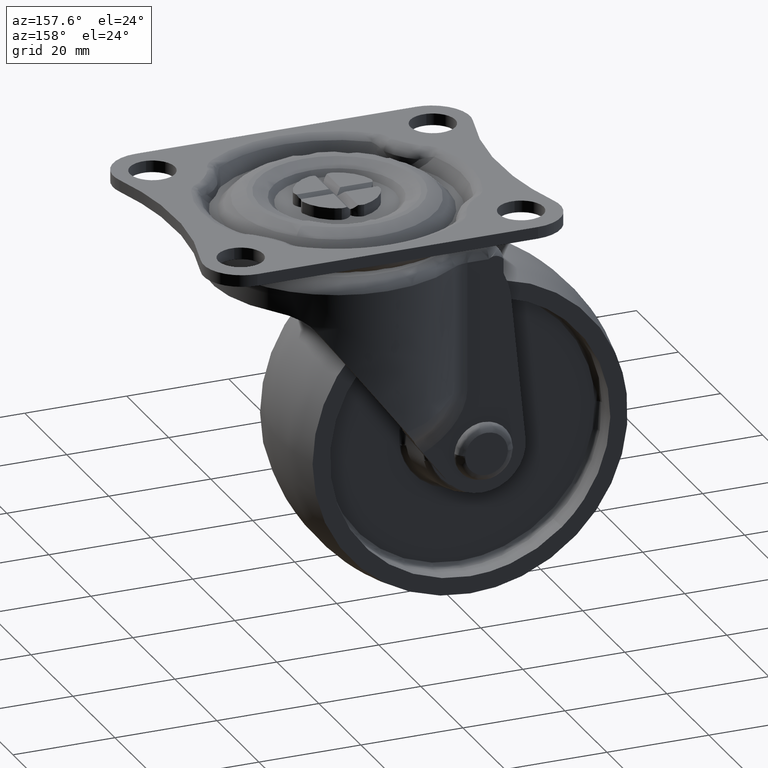
[diagram: clean part render]
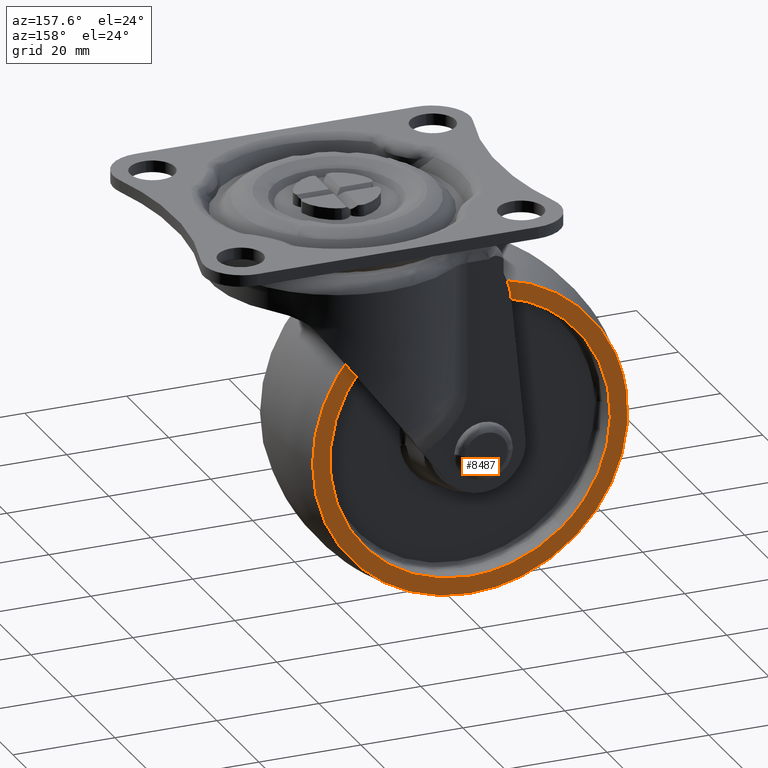
[diagram: same view with one face highlighted and labeled with its STEP entity id]
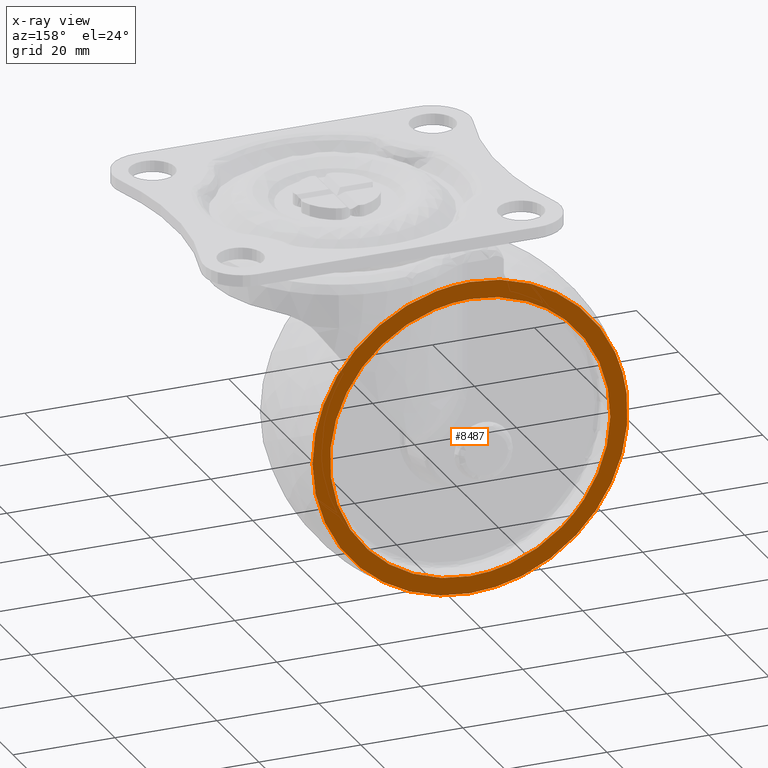
[diagram: x-ray of the same camera — body ghosted, the highlighted face saturated]
A machine part, auxiliary view. The second image highlights one B-rep face of the part: STEP entity #8487.
The next image is the same camera in x-ray: the body ghosted, the highlighted face saturated — about 0% of this face is hidden behind the body in this view.
In plain terms, the highlighted face is a freeform B-spline surface patch.
Its self-contained STEP definition (entity closure, byte-faithful):
#6432=CARTESIAN_POINT('',(-17.994337743347671,12.499999999999959,-20.795523777445940));
#6433=VERTEX_POINT('',#6432);
#6434=CARTESIAN_POINT('',(0.0,12.500000000000000,-27.500000000000000));
#6435=VERTEX_POINT('',#6434);
#6436=CARTESIAN_POINT('',(-17.994337743347671,12.499999999999968,-20.795523777445940));
#6437=CARTESIAN_POINT('',(-10.246172921167416,12.499999999999998,-27.500000000000000));
#6438=CARTESIAN_POINT('',(0.0,12.500000000000000,-27.500000000000000));
#6446=(BOUNDED_CURVE()B_SPLINE_CURVE(2,(#6436,#6437,#6438),.UNSPECIFIED.,.F.,.U.)B_SPLINE_CURVE_WITH_KNOTS((3,3),(0.885882140467313,1.0),.UNSPECIFIED.)CURVE()GEOMETRIC_REPRESENTATION_ITEM()RATIONAL_B_SPLINE_CURVE((0.854663301068287,0.866302611189479,1.0))REPRESENTATION_ITEM(''));
#6447=EDGE_CURVE('',#6433,#6435,#6446,.T.);
#6518=CARTESIAN_POINT('',(-18.578729160376721,12.500000000000000,20.275128181724600));
#6519=VERTEX_POINT('',#6518);
#6525=CARTESIAN_POINT('',(0.0,12.500000000000000,27.500000000000000));
#6526=VERTEX_POINT('',#6525);
#6527=CARTESIAN_POINT('',(0.0,12.500000000000000,27.500000000000000));
#6528=CARTESIAN_POINT('',(-10.694163916566959,12.500000000000000,27.499999999999996));
#6529=CARTESIAN_POINT('',(-18.578729160376717,12.499999999999996,20.275128181724607));
#6537=(BOUNDED_CURVE()B_SPLINE_CURVE(2,(#6527,#6528,#6529),.UNSPECIFIED.,.F.,.U.)B_SPLINE_CURVE_WITH_KNOTS((3,3),(0.500000000000000,0.618415197550459),.UNSPECIFIED.)CURVE()GEOMETRIC_REPRESENTATION_ITEM()RATIONAL_B_SPLINE_CURVE((1.0,0.861267966532061,0.853959782261585))REPRESENTATION_ITEM(''));
#6538=EDGE_CURVE('',#6526,#6519,#6537,.T.);
#6540=CARTESIAN_POINT('',(0.0,12.500000000000000,-27.500000000000000));
#6541=CARTESIAN_POINT('',(27.499999999999993,12.499999999999998,-27.499999999999993));
#6542=CARTESIAN_POINT('',(27.500000000000000,12.500000000000000,1.377682E-015));
#6543=CARTESIAN_POINT('',(27.499999999999993,12.499999999999998,27.499999999999993));
#6544=CARTESIAN_POINT('',(0.0,12.500000000000000,27.500000000000000));
#6552=(BOUNDED_CURVE()B_SPLINE_CURVE(2,(#6540,#6541,#6542,#6543,#6544),.UNSPECIFIED.,.F.,.U.)B_SPLINE_CURVE_WITH_KNOTS((3,2,3),(0.0,0.250000000000000,0.500000000000000),.UNSPECIFIED.)CURVE()GEOMETRIC_REPRESENTATION_ITEM()RATIONAL_B_SPLINE_CURVE((1.0,0.707106781186547,1.0,0.707106781186547,1.0))REPRESENTATION_ITEM(''));
#6553=EDGE_CURVE('',#6435,#6526,#6552,.T.);
#6576=CARTESIAN_POINT('',(-18.578729160376717,12.499999999999996,20.275128181724607));
#6577=CARTESIAN_POINT('',(-27.499999999999996,12.499999999999996,12.100290853439613));
#6578=CARTESIAN_POINT('',(-27.500000000000000,12.500000000000000,1.377682E-015));
#6579=CARTESIAN_POINT('',(-27.499999999999993,12.499999999999996,-12.570287474145903));
#6580=CARTESIAN_POINT('',(-17.994337743347671,12.499999999999968,-20.795523777445940));
#6588=(BOUNDED_CURVE()B_SPLINE_CURVE(2,(#6576,#6577,#6578,#6579,#6580),.UNSPECIFIED.,.F.,.U.)B_SPLINE_CURVE_WITH_KNOTS((3,2,3),(0.618415197550459,0.750000000000000,0.885882140467313),.UNSPECIFIED.)CURVE()GEOMETRIC_REPRESENTATION_ITEM()RATIONAL_B_SPLINE_CURVE((0.853959782261585,0.845838814654487,1.0,0.840804169997068,0.854663301068287))REPRESENTATION_ITEM(''));
#6589=EDGE_CURVE('',#6519,#6433,#6588,.T.);
#8304=CARTESIAN_POINT('',(-30.705541457678009,12.500003080849940,3.569238104226155));
#8305=VERTEX_POINT('',#8304);
#8321=CARTESIAN_POINT('',(0.0,12.500000000000000,-30.912291827592700));
#8322=VERTEX_POINT('',#8321);
#8323=CARTESIAN_POINT('',(-30.705541457678013,12.500003080849941,3.569238104226155));
#8324=CARTESIAN_POINT('',(-30.912291057809131,12.500003001391528,1.790607035466678));
#8325=CARTESIAN_POINT('',(-30.912291080694381,12.500002912161779,-0.000000086820092));
#8326=CARTESIAN_POINT('',(-30.912291475775735,12.500001371736809,-30.912291868488200));
#8327=CARTESIAN_POINT('',(0.0,12.500000000000000,-30.912291827592700));
#8335=(BOUNDED_CURVE()B_SPLINE_CURVE(2,(#8323,#8324,#8325,#8326,#8327),.UNSPECIFIED.,.F.,.U.)B_SPLINE_CURVE_WITH_KNOTS((3,2,3),(0.730000141891360,0.750000000000000,1.0),.UNSPECIFIED.)CURVE()GEOMETRIC_REPRESENTATION_ITEM()RATIONAL_B_SPLINE_CURVE((0.956886397467445,0.976568708730993,1.0,0.707106781186548,1.0))REPRESENTATION_ITEM(''));
#8336=EDGE_CURVE('',#8305,#8322,#8335,.T.);
#8338=CARTESIAN_POINT('',(0.0,12.499985035687580,30.912295691356629));
#8339=VERTEX_POINT('',#8338);
#8340=CARTESIAN_POINT('',(0.0,12.500000000000000,-30.912291827592700));
#8341=CARTESIAN_POINT('',(30.912291827592696,12.500000000000000,-30.912291827592696));
#8342=CARTESIAN_POINT('',(30.912291827592700,12.499992517843790,0.000001931881964));
#8343=CARTESIAN_POINT('',(30.912291827592696,12.499985035687578,30.912295691356629));
#8344=CARTESIAN_POINT('',(0.0,12.499985035687580,30.912295691356629));
#8352=(BOUNDED_CURVE()B_SPLINE_CURVE(2,(#8340,#8341,#8342,#8343,#8344),.UNSPECIFIED.,.F.,.U.)B_SPLINE_CURVE_WITH_KNOTS((3,2,3),(0.0,0.250000000000000,0.500000000000000),.UNSPECIFIED.)CURVE()GEOMETRIC_REPRESENTATION_ITEM()RATIONAL_B_SPLINE_CURVE((1.0,0.707106781186548,1.0,0.707106781186548,1.0))REPRESENTATION_ITEM(''));
#8353=EDGE_CURVE('',#8322,#8339,#8352,.T.);
#8437=CARTESIAN_POINT('',(0.0,12.499985035687580,30.912295691356629));
#8438=CARTESIAN_POINT('',(-27.527162176829314,12.499994058268760,30.912293713550071));
#8439=CARTESIAN_POINT('',(-30.705541457678013,12.500003080849941,3.569238104226155));
#8447=(BOUNDED_CURVE()B_SPLINE_CURVE(2,(#8437,#8438,#8439),.UNSPECIFIED.,.F.,.U.)B_SPLINE_CURVE_WITH_KNOTS((3,3),(0.500000000000000,0.730000141891360),.UNSPECIFIED.)CURVE()GEOMETRIC_REPRESENTATION_ITEM()RATIONAL_B_SPLINE_CURVE((1.0,0.730538072455555,0.956886397467445))REPRESENTATION_ITEM(''));
#8448=EDGE_CURVE('',#8339,#8305,#8447,.T.);
#8471=CARTESIAN_POINT('',(-34.000254283359233,12.500000000000000,34.000434298465102));
#8472=CARTESIAN_POINT('',(-34.000254283359233,12.500000000000000,-34.000431540210940));
#8473=CARTESIAN_POINT('',(34.000422975846817,12.500000000000000,34.000434298465102));
#8474=CARTESIAN_POINT('',(34.000422975846817,12.500000000000000,-34.000431540210940));
#8475=B_SPLINE_SURFACE_WITH_KNOTS('',1,1,((#8471,#8473),(#8472,#8474)),.UNSPECIFIED.,.F.,.F.,.U.,(2,2),(2,2),(0.0,68.000865838676035),(0.0,68.000677259206043),.UNSPECIFIED.);
#8476=ORIENTED_EDGE('',*,*,#8336,.F.);
#8477=ORIENTED_EDGE('',*,*,#8448,.F.);
#8478=ORIENTED_EDGE('',*,*,#8353,.F.);
#8479=EDGE_LOOP('',(#8476,#8477,#8478));
#8480=FACE_OUTER_BOUND('',#8479,.T.);
#8481=ORIENTED_EDGE('',*,*,#6553,.T.);
#8482=ORIENTED_EDGE('',*,*,#6538,.T.);
#8483=ORIENTED_EDGE('',*,*,#6589,.T.);
#8484=ORIENTED_EDGE('',*,*,#6447,.T.);
#8485=EDGE_LOOP('',(#8481,#8482,#8483,#8484));
#8486=FACE_BOUND('',#8485,.T.);
#8487=ADVANCED_FACE('',(#8480,#8486),#8475,.F.);